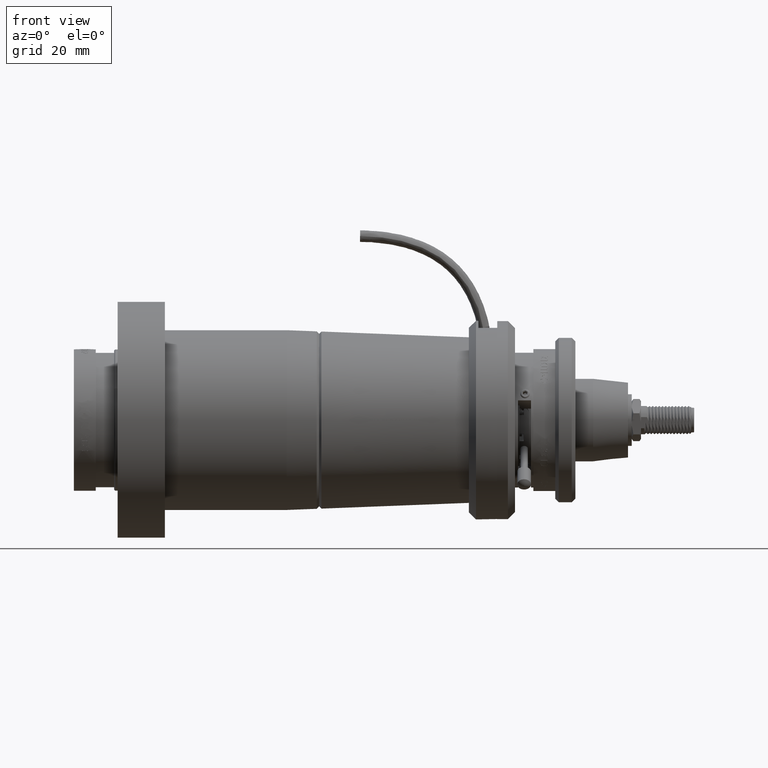
[diagram: clean part render]
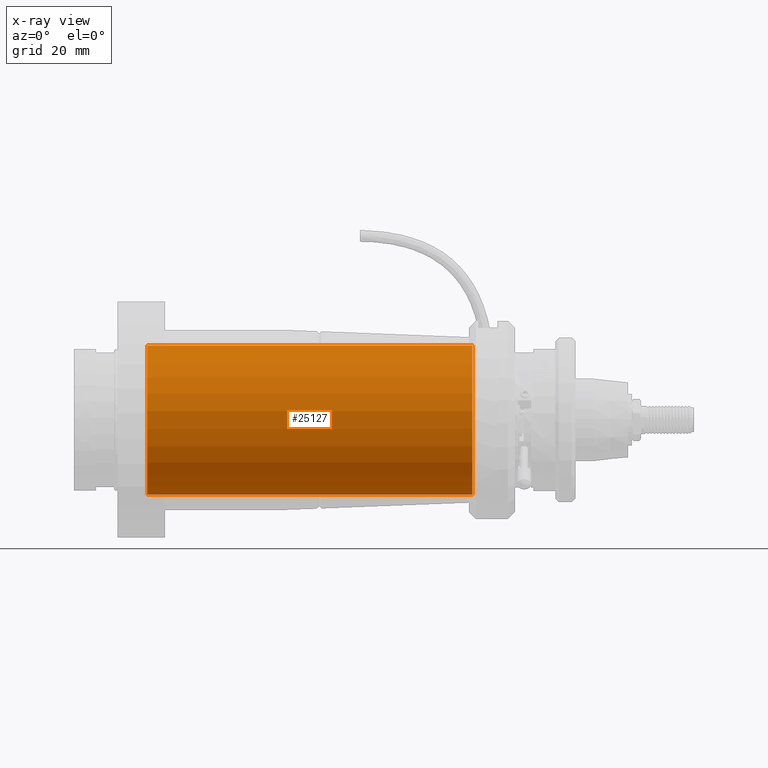
[diagram: x-ray — body ghosted, one internal face saturated and labeled with its STEP entity id]
A machine part, front view, then the same camera in x-ray: the body is ghosted and one INTERNAL B-rep face — a face not visible from any outside direction — is saturated and labeled: STEP entity #25127.
In plain terms, the highlighted cylindrical surface (bore or boss wall) has radius 16.002 mm, axis along (-1, -0, -0).
Its self-contained STEP definition (entity closure, byte-faithful):
#3201 = CIRCLE ( 'NONE', #46233, 16.00199999999998100 ) ;
#11954 = AXIS2_PLACEMENT_3D ( 'NONE', #17830, #54573, #49280 ) ;
#15209 = VERTEX_POINT ( 'NONE', #15882 ) ;
#15882 = CARTESIAN_POINT ( 'NONE',  ( 64.02614966030979800, -0.4715415735176992600, 13.28281259286226400 ) ) ;
#17830 = CARTESIAN_POINT ( 'NONE',  ( -31.60859516714725700, -0.4715415735176992600, -2.719187407137724200 ) ) ;
#22404 = CYLINDRICAL_SURFACE ( 'NONE', #11954, 16.00199999999998500 ) ;
#22920 = FACE_OUTER_BOUND ( 'NONE', #66089, .T. ) ;
#24676 = FACE_OUTER_BOUND ( 'NONE', #49511, .T. ) ;
#25127 = ADVANCED_FACE ( 'NONE', ( #24676, #22920 ), #22404, .F. ) ;
#25431 = DIRECTION ( 'NONE',  ( -1.000000000000000000, -0.0000000000000000000, -0.0000000000000000000 ) ) ;
#27297 = DIRECTION ( 'NONE',  ( -1.000000000000000000, -0.0000000000000000000, -0.0000000000000000000 ) ) ;
#29993 = ORIENTED_EDGE ( 'NONE', *, *, #54374, .T. ) ;
#29998 = ORIENTED_EDGE ( 'NONE', *, *, #51387, .F. ) ;
#34374 = AXIS2_PLACEMENT_3D ( 'NONE', #56805, #25431, #62086 ) ;
#37339 = CARTESIAN_POINT ( 'NONE',  ( -5.823850339690205000, -0.4715415735176992600, 13.28281259286225700 ) ) ;
#46233 = AXIS2_PLACEMENT_3D ( 'NONE', #58666, #27297, #63926 ) ;
#47518 = VERTEX_POINT ( 'NONE', #37339 ) ;
#49280 = DIRECTION ( 'NONE',  ( 0.0000000000000000000, 0.0000000000000000000, 1.000000000000000000 ) ) ;
#49511 = EDGE_LOOP ( 'NONE', ( #29998 ) ) ;
#51387 = EDGE_CURVE ( 'NONE', #15209, #15209, #63733, .T. ) ;
#54374 = EDGE_CURVE ( 'NONE', #47518, #47518, #3201, .T. ) ;
#54573 = DIRECTION ( 'NONE',  ( -1.000000000000000000, -0.0000000000000000000, -0.0000000000000000000 ) ) ;
#56805 = CARTESIAN_POINT ( 'NONE',  ( 64.02614966030979800, -0.4715415735176992600, -2.719187407137724200 ) ) ;
#58666 = CARTESIAN_POINT ( 'NONE',  ( -5.823850339690205000, -0.4715415735176992600, -2.719187407137724200 ) ) ;
#62086 = DIRECTION ( 'NONE',  ( 0.0000000000000000000, 0.0000000000000000000, 1.000000000000000000 ) ) ;
#63733 = CIRCLE ( 'NONE', #34374, 16.00199999999998800 ) ;
#63926 = DIRECTION ( 'NONE',  ( 0.0000000000000000000, 0.0000000000000000000, 1.000000000000000000 ) ) ;
#66089 = EDGE_LOOP ( 'NONE', ( #29993 ) ) ;